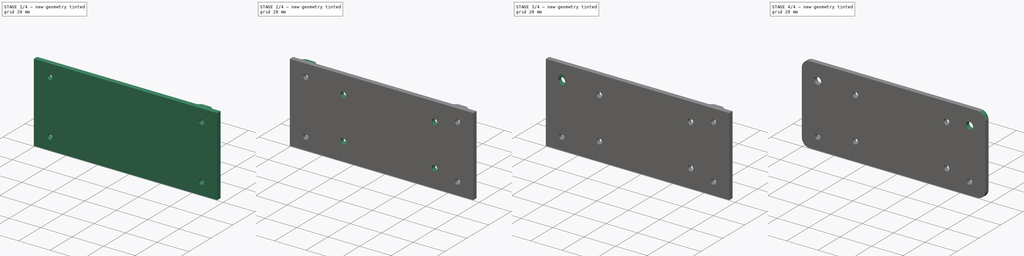
[diagram: build sequence overview — one tinted view per stage of 4, left to right]
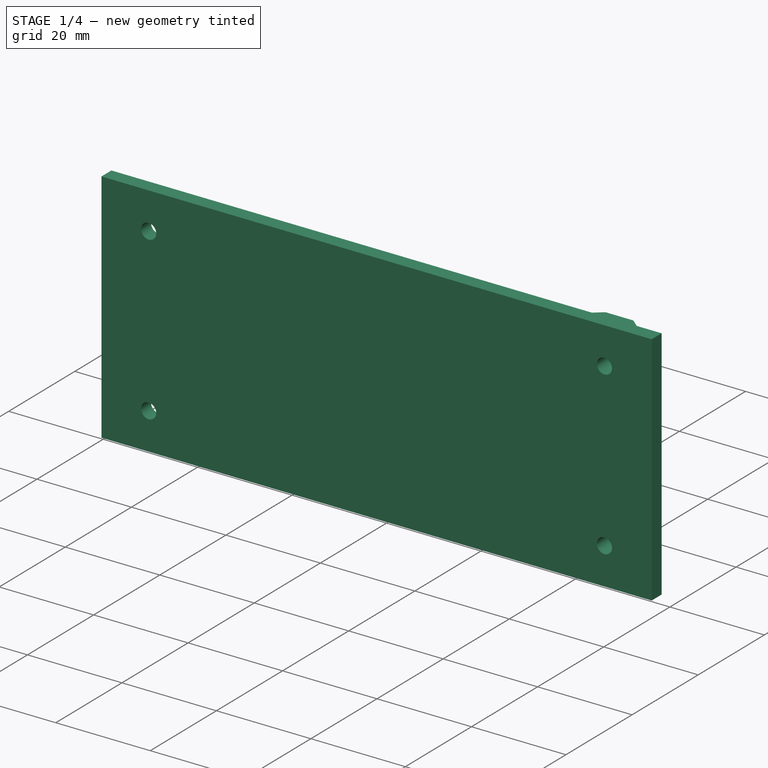
[diagram: stage 1 of 4 — iso view after this stage's code; geometry added in this stage tinted green]
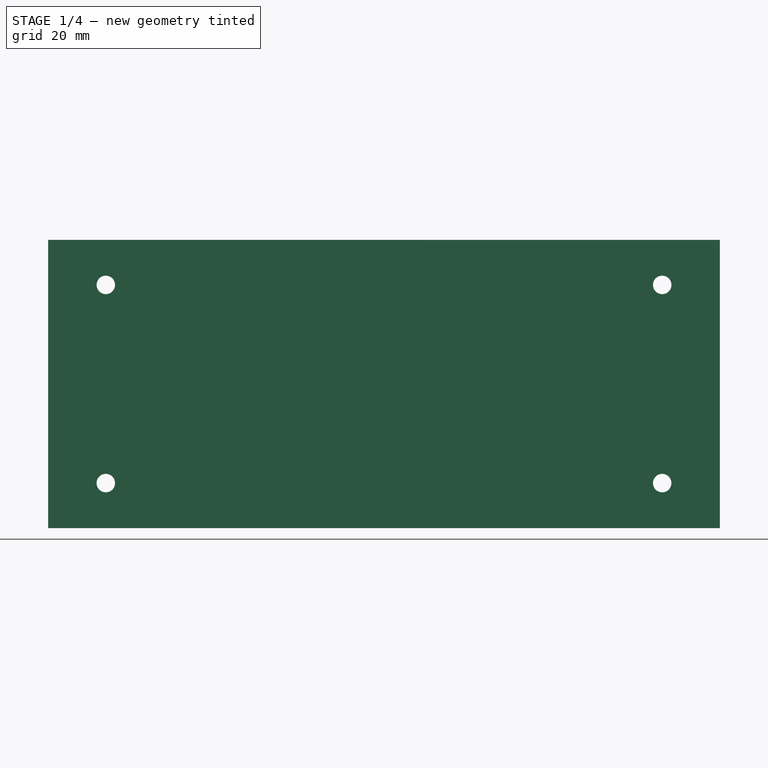
[diagram: stage 1 of 4 — front view after this stage's code; geometry added in this stage tinted green]
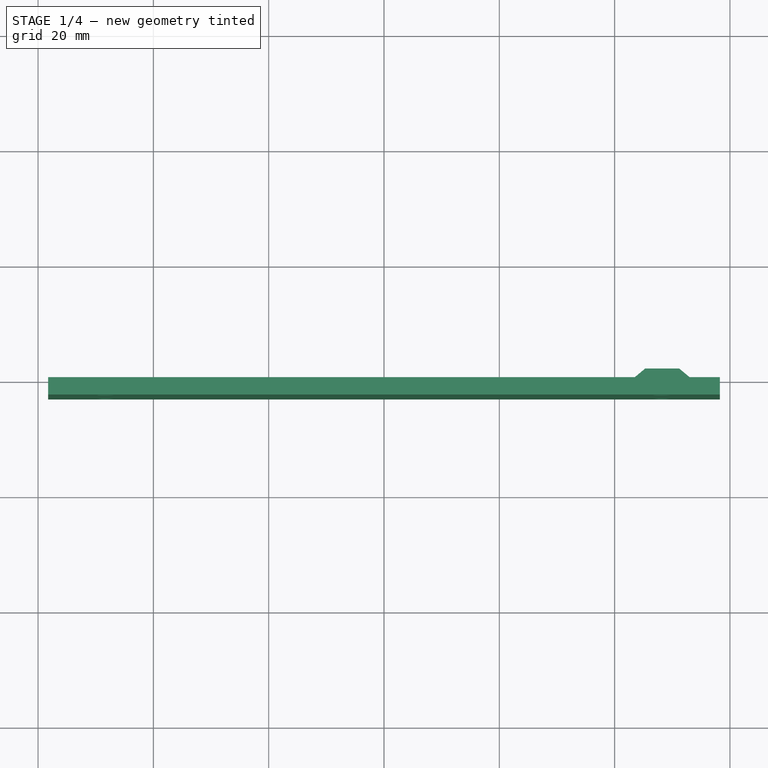
[diagram: stage 1 of 4 — top view after this stage's code; geometry added in this stage tinted green]
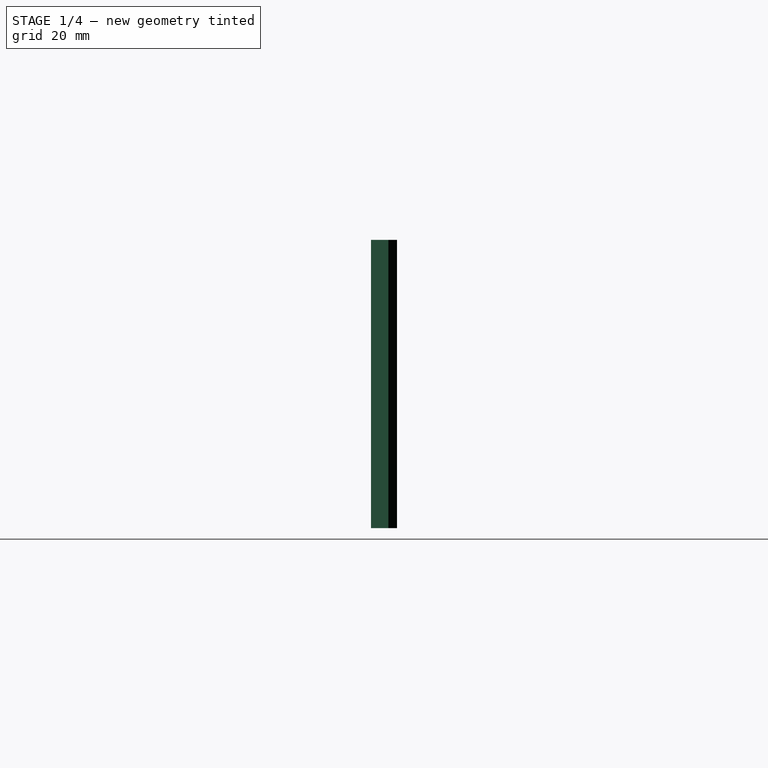
[diagram: stage 1 of 4 — right view after this stage's code; geometry added in this stage tinted green]
FCSTD DOCUMENT  (FreeCAD 1.0R39109 (Git))
Label: suporte-fonte-dcdc
License: All rights reserved
LicenseURL: https://en.wikipedia.org/wiki/All_rights_reserved
objects: Sketcher::SketchObject×6, PartDesign::Pocket×5, PartDesign::Pad×3, PartDesign::Mirrored×2, PartDesign::Body×2, Part::Refine×1, PartDesign::FeatureBase×1, PartDesign::Fillet×1
note: 48 computed .brp shape members not serialized (recipe doc carries the construction recipe); baked Part::Feature solids carry a one-line shape summary decoded from their .brp

FEATURE [Sketcher::SketchObject] Sketch
  ArcFitTolerance = 0
  AttachmentSupport = -> [XZ_Plane]
  FullyConstrained = true
  MakeInternals = false
  MapMode = 5
  Placement = pos=(0,0,0) rot=(1,0,0;1.5708rad)
  sketch-geometry (25):
    g0: LineSegment StartX=-58.25 StartY=25 StartZ=0 EndX=58.25 EndY=25 EndZ=0
    g1: LineSegment StartX=58.25 StartY=25 StartZ=0 EndX=58.25 EndY=-25 EndZ=0
    g2: LineSegment StartX=58.25 StartY=-25 StartZ=0 EndX=-58.25 EndY=-25 EndZ=0
    g3: LineSegment StartX=-58.25 StartY=-25 StartZ=0 EndX=-58.25 EndY=25 EndZ=0
    g4: LineSegment [constr] StartX=-48.25 StartY=17.186 StartZ=0 EndX=48.25 EndY=17.186 EndZ=0
    g5: LineSegment [constr] StartX=48.25 StartY=17.186 StartZ=0 EndX=48.25 EndY=-17.186 EndZ=0
    g6: LineSegment [constr] StartX=48.25 StartY=-17.186 StartZ=0 EndX=-48.25 EndY=-17.186 EndZ=0
    g7: LineSegment [constr] StartX=-48.25 StartY=-17.186 StartZ=0 EndX=-48.25 EndY=17.186 EndZ=0
    g8: Circle CenterX=-48.25 CenterY=17.186 CenterZ=0 NormalX=0 NormalY=0 NormalZ=1 AngleXU=0 Radius=1.6
    g9: Circle CenterX=-48.25 CenterY=-17.186 CenterZ=0 NormalX=0 NormalY=0 NormalZ=1 AngleXU=0 Radius=1.6
    g10: Circle CenterX=48.25 CenterY=-17.186 CenterZ=0 NormalX=0 NormalY=0 NormalZ=1 AngleXU=0 Radius=1.6
    g11: Circle CenterX=48.25 CenterY=17.186 CenterZ=0 NormalX=0 NormalY=0 NormalZ=1 AngleXU=0 Radius=1.6
    g12: LineSegment [constr] StartX=-58.25 StartY=25 StartZ=0 EndX=-38.25 EndY=25 EndZ=0
    g13: LineSegment [constr] StartX=-38.25 StartY=25 StartZ=0 EndX=-38.25 EndY=-25 EndZ=0
    g14: LineSegment [constr] StartX=-38.25 StartY=-25 StartZ=0 EndX=-58.25 EndY=-25 EndZ=0
    g15: LineSegment [constr] StartX=-58.25 StartY=-25 StartZ=0 EndX=-58.25 EndY=25 EndZ=0
    g16: LineSegment [constr] StartX=58.25 StartY=-25 StartZ=0 EndX=38.25 EndY=-25 EndZ=0
    g17: LineSegment [constr] StartX=38.25 StartY=-25 StartZ=0 EndX=38.25 EndY=25 EndZ=0
    g18: LineSegment [constr] StartX=38.25 StartY=25 StartZ=0 EndX=58.25 EndY=25 EndZ=0
    g19: LineSegment [constr] StartX=58.25 StartY=25 StartZ=0 EndX=58.25 EndY=-25 EndZ=0
    g20: LineSegment [constr] StartX=-58.25 StartY=0 StartZ=0 EndX=-38.25 EndY=0 EndZ=0
    g21: LineSegment [constr] StartX=-27.99 StartY=18.25 StartZ=0 EndX=37.25 EndY=18.25 EndZ=0
    g22: LineSegment [constr] StartX=37.25 StartY=18.25 StartZ=0 EndX=37.25 EndY=-18.25 EndZ=0
    g23: LineSegment [constr] StartX=37.25 StartY=-18.25 StartZ=0 EndX=-27.99 EndY=-18.25 EndZ=0
    g24: LineSegment [constr] StartX=-27.99 StartY=-18.25 StartZ=0 EndX=-27.99 EndY=18.25 EndZ=0
  constraints (64):
    c: Coincident(g0,g1)
    c: Coincident(g1,g2)
    c: Coincident(g2,g3)
    c: Coincident(g3,g0)
    c: Horizontal(g2)
    c: Vertical(g1)
    c: Symmetric(g0,g2,g-1)
    c: Symmetric(g0,g0,g-2)
    c: DistanceX(g2,g2) = 116.5
    c: DistanceY(g3,g3) = 50
    c: Coincident(g4,g5)
    c: Coincident(g5,g6)
    c: Coincident(g6,g7)
    c: Coincident(g7,g4)
    c: Horizontal(g6)
    c: Vertical(g5)
    c: Symmetric(g4,g6,g-1)
    c: Symmetric(g4,g4,g-2)
    c: Coincident(g8,g4)
    c: Coincident(g9,g6)
    c: Coincident(g10,g5)
    c: Coincident(g11,g4)
    c: Equal(g11,g8)
    c: Equal(g8,g9)
    c: Equal(g9,g10)
    c: Coincident(g12,g13)
    c: Coincident(g13,g14)
    c: Coincident(g14,g15)
    c: Coincident(g15,g12)
    c: Horizontal(g14)
    c: Vertical(g13)
    c: Vertical(g15)
    c: Coincident(g12,g0)
    c: PointOnObject(g13,g2)
    c: DistanceX(g0,g12) = 20
    c: DistanceY(g7,g7) = 34.372
    c: Symmetric(g0,g12,g7)
    c: Diameter(g10) = 3.2
    c: Coincident(g16,g17)
    c: Coincident(g17,g18)
    c: Coincident(g18,g19)
    c: Coincident(g19,g16)
    c: Horizontal(g16)
    c: Horizontal(g18)
    c: Vertical(g17)
    c: Vertical(g19)
    c: Coincident(g16,g1)
    c: PointOnObject(g20,g3)
    c: PointOnObject(g20,g13)
    c: PointOnObject(g20,g-1)
    c: PointOnObject(g20,g-1)
    c: Equal(g20,g18)
    c: PointOnObject(g17,g0)
    c: Coincident(g21,g22)
    c: Coincident(g22,g23)
    c: Coincident(g23,g24)
    c: Coincident(g24,g21)
    c: Horizontal(g21)
    c: Horizontal(g23)
    c: Vertical(g22)
    c: DistanceX(g21,g21) = 65.24
    c: DistanceX(g22,g16) = 1
    c: Symmetric(g21,g23,g-1)
    c: DistanceY(g22,g22) = 36.5
FEATURE [PartDesign::Pad] Pad
  Direction = (0,-1,-2e-16)
  Length = 3
  Length2 = 10
  Placement = pos=(0,0,0) rot=(1,0,0;1.5708rad)
  Profile = -> Sketch
  ReferenceAxis = -> Sketch [N_Axis]
  Suppressed = false
  Type = 0
FEATURE [Sketcher::SketchObject] Sketch001
  ArcFitTolerance = 0
  AttachmentSupport = -> [Pad]
  ExternalGeometry = -> [Pad]
  FullyConstrained = false
  MakeInternals = false
  MapMode = 5
  Placement = pos=(0,0,25) rot=(0,0,1;3.14159rad)
  sketch-geometry (6):
    g0: LineSegment [constr] StartX=-58.25 StartY=0 StartZ=0 EndX=-38.25 EndY=0 EndZ=0
    g1: LineSegment [constr] StartX=-48.25 StartY=0 StartZ=0 EndX=-48.25 EndY=-19.4586 EndZ=0
    g2: LineSegment StartX=-51.2 StartY=-1.5 StartZ=0 EndX=-45.3 EndY=-1.5 EndZ=0
    g3: LineSegment StartX=-45.3 StartY=-1.5 StartZ=0 EndX=-43.5 EndY=0 EndZ=0
    g4: LineSegment StartX=-43.5 StartY=0 StartZ=0 EndX=-53 EndY=0 EndZ=0
    g5: LineSegment StartX=-53 StartY=0 StartZ=0 EndX=-51.2 EndY=-1.5 EndZ=0
  constraints (15):
    c: Coincident(g0,g-3)
    c: PointOnObject(g0,g-1)
    c: DistanceX(g0,g0) = 20
    c: PointOnObject(g1,g0)
    c: Coincident(g2,g3)
    c: Coincident(g3,g4)
    c: Coincident(g4,g5)
    c: Coincident(g5,g2)
    c: Symmetric(g2,g2,g1)
    c: Symmetric(g4,g3,g1)
    c: Symmetric(g0,g0,g1)
    c: PointOnObject(g4,g0)
    c: DistanceX(g4,g4) = 9.5
    c: DistanceX(g2,g2) = 5.9
    c: DistanceY(g2,g4) = 1.5
FEATURE [PartDesign::Pad] Pad001
  BaseFeature = -> Pad
  Direction = (0,-2e-16,1)
  Length = 10
  Length2 = 10
  Placement = pos=(0,0,0) rot=(1,0,0;1.5708rad)
  Profile = -> Sketch001
  ReferenceAxis = -> Sketch001 [N_Axis]
  Suppressed = false
  Type = 3
  UpToFace = -> Pad [Face3]
FEATURE [PartDesign::Pocket] Pocket
  BaseFeature = -> Pad001
  Direction = (0,1,2e-16)
  Length = 5
  Length2 = 5
  Placement = pos=(0,0,0) rot=(1,0,0;1.5708rad)
  Profile = -> Pad001 [Face18,Face17]
  Suppressed = false
  Type = 1
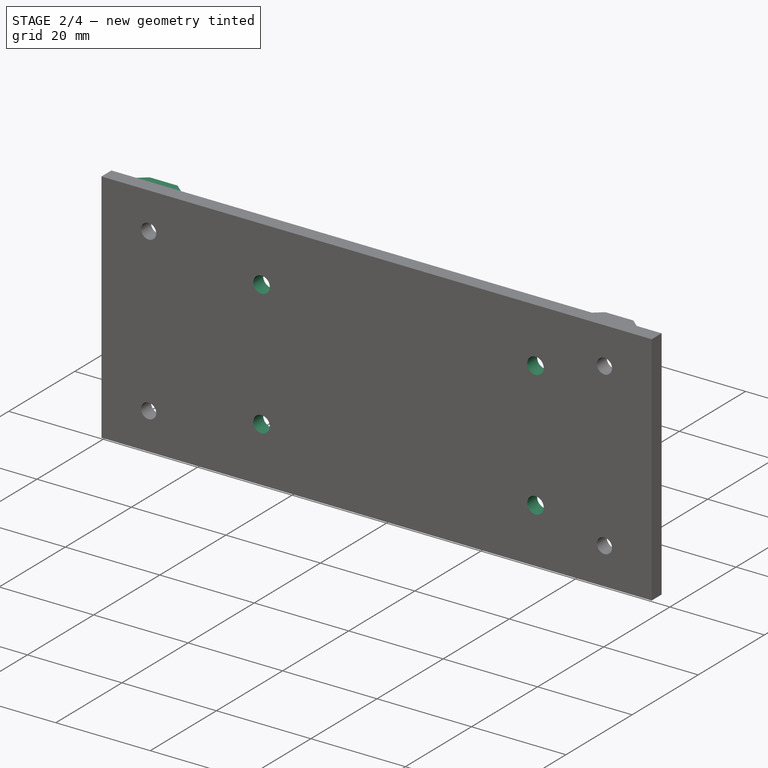
[diagram: stage 2 of 4 — iso view after this stage's code; geometry added in this stage tinted green]
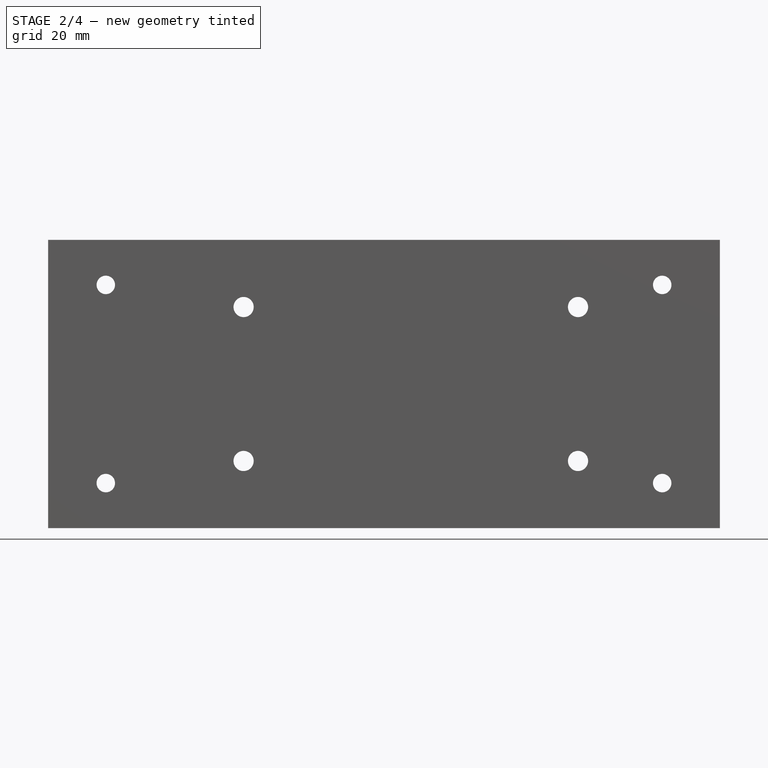
[diagram: stage 2 of 4 — front view after this stage's code; geometry added in this stage tinted green]
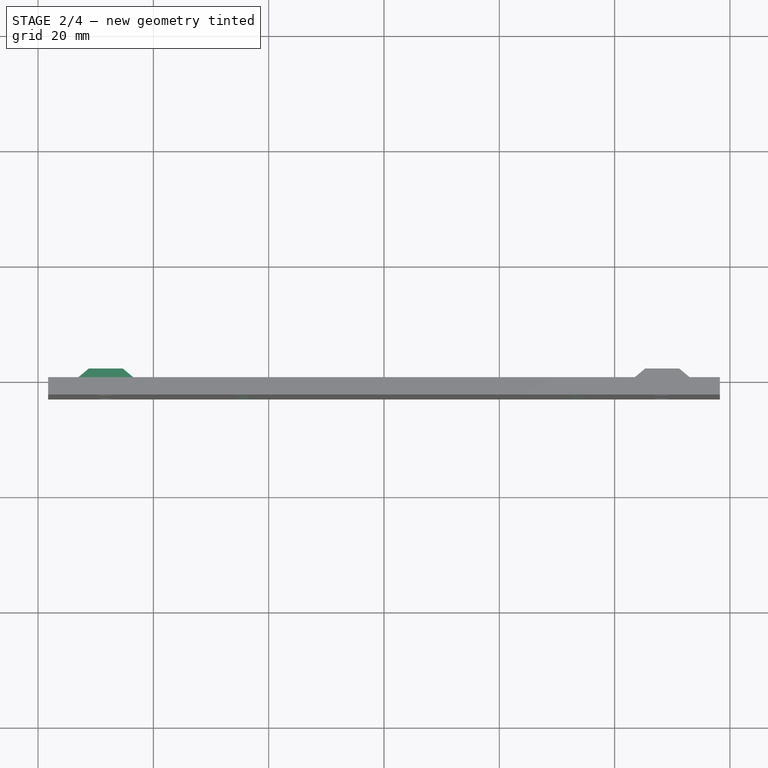
[diagram: stage 2 of 4 — top view after this stage's code; geometry added in this stage tinted green]
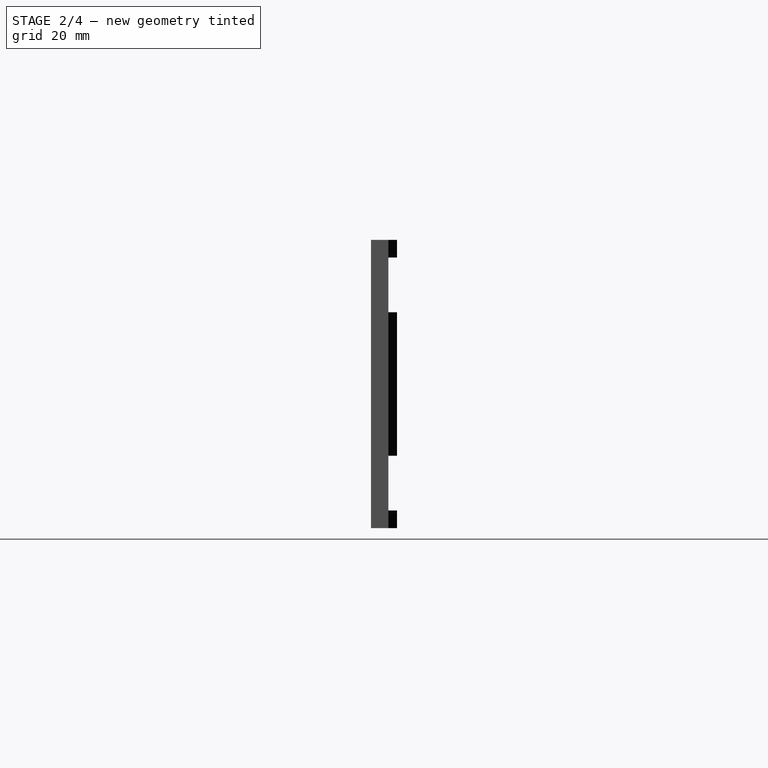
[diagram: stage 2 of 4 — right view after this stage's code; geometry added in this stage tinted green]
FEATURE [Sketcher::SketchObject] Sketch002
  ArcFitTolerance = 0
  AttachmentSupport = -> [Pocket]
  ExternalGeometry = -> [Pocket]
  FullyConstrained = true
  MakeInternals = false
  MapMode = 5
  Placement = pos=(0,1.5,0) rot=(-1,0,0;1.5708rad)
  sketch-geometry (10):
    g0: Circle [constr] CenterX=48.25 CenterY=17.186 CenterZ=0 NormalX=0 NormalY=0 NormalZ=1 AngleXU=0 Radius=4.75
    g1: Circle [constr] CenterX=48.25 CenterY=-17.186 CenterZ=0 NormalX=0 NormalY=0 NormalZ=1 AngleXU=0 Radius=4.75
    g2: LineSegment StartX=43.5 StartY=21.936 StartZ=0 EndX=53 EndY=21.936 EndZ=0
    g3: LineSegment StartX=53 StartY=21.936 StartZ=0 EndX=53 EndY=12.436 EndZ=0
    g4: LineSegment StartX=53 StartY=12.436 StartZ=0 EndX=43.5 EndY=12.436 EndZ=0
    g5: LineSegment StartX=43.5 StartY=12.436 StartZ=0 EndX=43.5 EndY=21.936 EndZ=0
    g6: LineSegment StartX=43.5 StartY=-12.436 StartZ=0 EndX=53 EndY=-12.436 EndZ=0
    g7: LineSegment StartX=53 StartY=-12.436 StartZ=0 EndX=53 EndY=-21.936 EndZ=0
    g8: LineSegment StartX=53 StartY=-21.936 StartZ=0 EndX=43.5 EndY=-21.936 EndZ=0
    g9: LineSegment StartX=43.5 StartY=-21.936 StartZ=0 EndX=43.5 EndY=-12.436 EndZ=0
  constraints (28):
    c: Coincident(g0,g-3)
    c: Coincident(g1,g-4)
    c: Tangent(g1,g-5)
    c: Tangent(g0,g-6)
    c: Coincident(g2,g3)
    c: Coincident(g3,g4)
    c: Coincident(g4,g5)
    c: Coincident(g5,g2)
    c: Horizontal(g2)
    c: Horizontal(g4)
    c: Vertical(g3)
    c: Vertical(g5)
    c: Coincident(g6,g7)
    c: Coincident(g7,g8)
    c: Coincident(g8,g9)
    c: Coincident(g9,g6)
    c: Horizontal(g6)
    c: Horizontal(g8)
    c: Vertical(g7)
    c: Vertical(g9)
    c: Tangent(g1,g8)
    c: Tangent(g1,g9)
    c: Tangent(g1,g6)
    c: Tangent(g1,g7)
    c: Tangent(g4,g0)
    c: Tangent(g0,g2)
    c: Tangent(g0,g5)
    c: Tangent(g0,g3)
FEATURE [PartDesign::Pocket] Pocket001
  BaseFeature = -> Pocket
  Direction = (0,-1,-2e-16)
  Length = 0
  Length2 = 5
  Placement = pos=(0,0,0) rot=(1,0,0;1.5708rad)
  Profile = -> Sketch002
  ReferenceAxis = -> Sketch002 [N_Axis]
  Suppressed = false
  Type = 3
  UpToFace = -> Pocket [Face4]
FEATURE [PartDesign::Mirrored] Mirrored
  BaseFeature = -> Pocket001
  MirrorPlane = -> YZ_Plane
  Originals = -> [Pad001,Pocket,Pocket001]
  Placement = pos=(0,0,0) rot=(1,0,0;1.5708rad)
  Suppressed = false
  TransformMode = 0
FEATURE [Sketcher::SketchObject] Sketch003
  ArcFitTolerance = 0
  AttachmentSupport = -> [Mirrored]
  ExternalGeometry = -> [Mirrored]
  FullyConstrained = true
  MakeInternals = false
  MapMode = 5
  Placement = pos=(0,0,0) rot=(-1,0,0;1.5708rad)
  sketch-geometry (28):
    g0: LineSegment [constr] StartX=-27.95 StartY=18.25 StartZ=0 EndX=37.25 EndY=18.25 EndZ=0
    g1: LineSegment [constr] StartX=37.25 StartY=18.25 StartZ=0 EndX=37.25 EndY=-18.25 EndZ=0
    g2: LineSegment [constr] StartX=37.25 StartY=-18.25 StartZ=0 EndX=-27.95 EndY=-18.25 EndZ=0
    g3: LineSegment [constr] StartX=-27.95 StartY=-18.25 StartZ=0 EndX=-27.95 EndY=18.25 EndZ=0
    g4: LineSegment [constr] StartX=-58.25 StartY=25 StartZ=0 EndX=-38.25 EndY=25 EndZ=0
    g5: LineSegment [constr] StartX=-38.25 StartY=25 StartZ=0 EndX=-38.25 EndY=-25 EndZ=0
    g6: LineSegment [constr] StartX=-38.25 StartY=-25 StartZ=0 EndX=-58.25 EndY=-25 EndZ=0
    g7: LineSegment [constr] StartX=-58.25 StartY=-25 StartZ=0 EndX=-58.25 EndY=25 EndZ=0
    g8: LineSegment [constr] StartX=58.25 StartY=25 StartZ=0 EndX=38.25 EndY=25 EndZ=0
    g9: LineSegment [constr] StartX=38.25 StartY=25 StartZ=0 EndX=38.25 EndY=-25 EndZ=0
    g10: LineSegment [constr] StartX=38.25 StartY=-25 StartZ=0 EndX=58.25 EndY=-25 EndZ=0
    g11: LineSegment [constr] StartX=58.25 StartY=-25 StartZ=0 EndX=58.25 EndY=25 EndZ=0
    g12: LineSegment [constr] StartX=-24.35 StartY=13.35 StartZ=0 EndX=33.65 EndY=13.35 EndZ=0
    g13: LineSegment [constr] StartX=33.65 StartY=13.35 StartZ=0 EndX=33.65 EndY=-13.35 EndZ=0
    g14: LineSegment [constr] StartX=33.65 StartY=-13.35 StartZ=0 EndX=-24.35 EndY=-13.35 EndZ=0
    g15: LineSegment [constr] StartX=-24.35 StartY=-13.35 StartZ=0 EndX=-24.35 EndY=13.35 EndZ=0
    g16: LineSegment [constr] StartX=-27.95 StartY=-4e-16 StartZ=0 EndX=37.25 EndY=-4e-16 EndZ=0
    g17: LineSegment [constr] StartX=4.65 StartY=18.25 StartZ=0 EndX=4.65 EndY=-18.25 EndZ=0
    g18: Circle [constr] CenterX=-24.35 CenterY=13.35 CenterZ=0 NormalX=0 NormalY=0 NormalZ=1 AngleXU=0 Radius=1.5
    g19: Circle [constr] CenterX=33.65 CenterY=13.35 CenterZ=0 NormalX=0 NormalY=0 NormalZ=1 AngleXU=0 Radius=1.5
    g20: Circle [constr] CenterX=33.65 CenterY=-13.35 CenterZ=0 NormalX=0 NormalY=0 NormalZ=1 AngleXU=0 Radius=1.5
    g21: Circle [constr] CenterX=-24.35 CenterY=-13.35 CenterZ=0 NormalX=0 NormalY=0 NormalZ=1 AngleXU=0 Radius=1.5
    g22: LineSegment [constr] StartX=-25.85 StartY=13.35 StartZ=0 EndX=-27.95 EndY=13.35 EndZ=0
    g23: LineSegment [constr] StartX=-24.35 StartY=14.85 StartZ=0 EndX=-24.35 EndY=18.25 EndZ=0
    g24: Circle CenterX=-24.35 CenterY=-13.35 CenterZ=0 NormalX=0 NormalY=0 NormalZ=1 AngleXU=0 Radius=1.75
    g25: Circle CenterX=33.65 CenterY=-13.35 CenterZ=0 NormalX=0 NormalY=0 NormalZ=1 AngleXU=0 Radius=1.75
    g26: Circle CenterX=33.65 CenterY=13.35 CenterZ=0 NormalX=0 NormalY=0 NormalZ=1 AngleXU=0 Radius=1.75
    g27: Circle CenterX=-24.35 CenterY=13.35 CenterZ=0 NormalX=0 NormalY=0 NormalZ=1 AngleXU=0 Radius=1.75
  constraints (73):
    c: Coincident(g0,g1)
    c: Coincident(g1,g2)
    c: Coincident(g2,g3)
    c: Coincident(g3,g0)
    c: Horizontal(g0)
    c: Vertical(g3)
    c: Coincident(g4,g5)
    c: Coincident(g5,g6)
    c: Coincident(g6,g7)
    c: Coincident(g7,g4)
    c: Horizontal(g4)
    c: Horizontal(g6)
    c: Vertical(g5)
    c: Vertical(g7)
    c: Coincident(g4,g-4)
    c: Coincident(g8,g9)
    c: Coincident(g9,g10)
    c: Coincident(g10,g11)
    c: Coincident(g11,g8)
    c: Horizontal(g8)
    c: Horizontal(g10)
    c: Vertical(g9)
    c: Vertical(g11)
    c: Coincident(g8,g-5)
    c: Horizontal(g9,g5)
    c: PointOnObject(g-3,g10)
    c: Equal(g4,g8)
    c: DistanceX(g10,g10) = 20
    c: Coincident(g12,g13)
    c: Coincident(g13,g14)
    c: Coincident(g14,g15)
    c: Coincident(g15,g12)
    c: Horizontal(g14)
    c: Vertical(g13)
    c: Vertical(g1)
    c: Symmetric(g0,g2,g16)
    c: Symmetric(g1,g2,g17)
    c: PointOnObject(g16,g1)
    c: PointOnObject(g16,g3)
    c: PointOnObject(g17,g0)
    c: PointOnObject(g17,g2)
    c: Symmetric(g14,g12,g16)
    c: Symmetric(g12,g12,g17)
    c: Coincident(g18,g12)
    c: Coincident(g19,g12)
    c: Coincident(g20,g13)
    c: Coincident(g21,g14)
    c: Equal(g21,g20)
    c: Equal(g20,g19)
    c: Equal(g19,g18)
    c: Diameter(g20) = 3
    c: PointOnObject(g22,g3)
    c: Horizontal(g22)
    c: Horizontal(g22,g18)
    c: PointOnObject(g22,g18)
    c: DistanceX(g22,g22) = 2.1
    c: PointOnObject(g23,g18)
    c: PointOnObject(g23,g0)
    c: Vertical(g12,g23)
    c: Vertical(g23,g23)
    c: DistanceY(g23,g23) = 3.4
    c: DistanceX(g2,g2) = 65.2
    c: DistanceY(g1,g1) = 36.5
    c: Coincident(g24,g14)
    c: Coincident(g25,g13)
    c: Coincident(g26,g12)
    c: Coincident(g27,g12)
    c: Equal(g27,g26)
    c: Equal(g26,g25)
    c: Equal(g25,g24)
    c: Diameter(g25) = 3.5
    c: DistanceX(g1,g9) = 1
    c: Symmetric(g17,g17,g-1)
FEATURE [PartDesign::Pocket] Pocket002
  BaseFeature = -> Mirrored
  Direction = (0,-1,-2e-16)
  Length = 5
  Length2 = 5
  Placement = pos=(0,0,0) rot=(1,0,0;1.5708rad)
  Profile = -> Sketch003
  ReferenceAxis = -> Sketch003 [N_Axis]
  Suppressed = false
  Type = 0
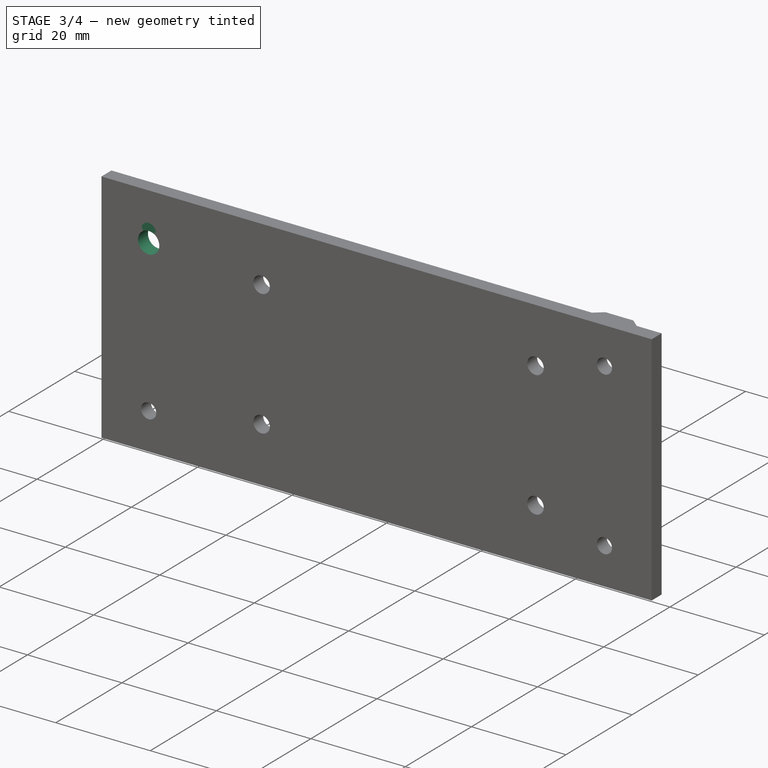
[diagram: stage 3 of 4 — iso view after this stage's code; geometry added in this stage tinted green]
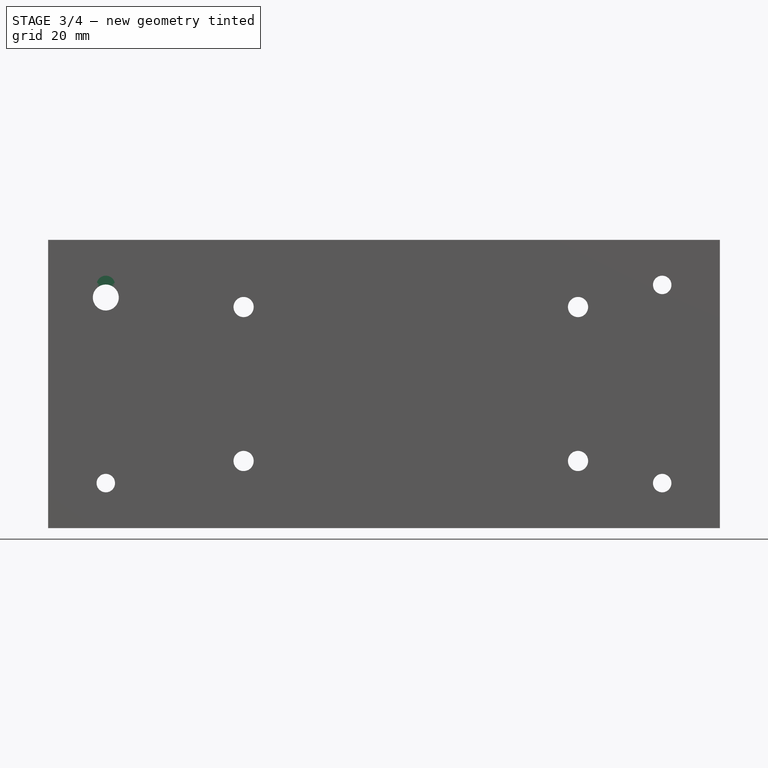
[diagram: stage 3 of 4 — front view after this stage's code; geometry added in this stage tinted green]
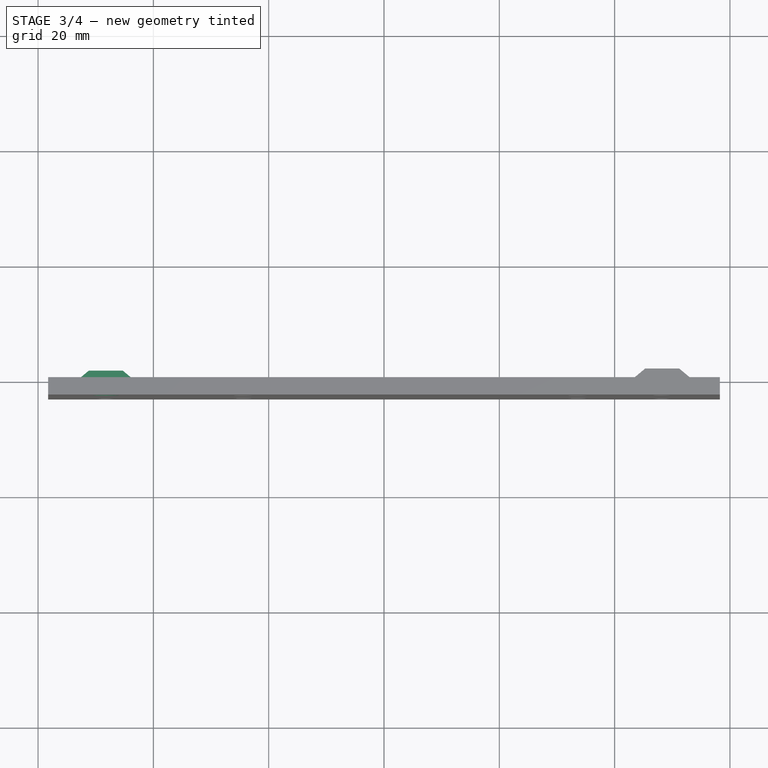
[diagram: stage 3 of 4 — top view after this stage's code; geometry added in this stage tinted green]
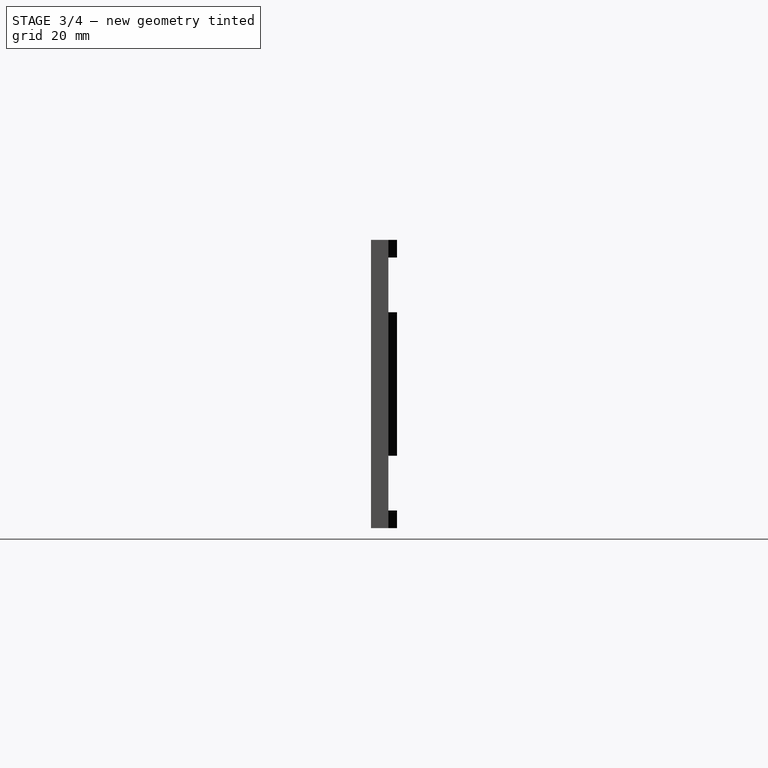
[diagram: stage 3 of 4 — right view after this stage's code; geometry added in this stage tinted green]
FEATURE [PartDesign::Pocket] Pocket003  label="correcao"
  BaseFeature = -> Pocket002
  Direction = (2e-16,0,-1)
  Length = 21
  Length2 = 5
  Placement = pos=(0,0,0) rot=(1,0,0;1.5708rad)
  Profile = -> Pocket002 [Face5]
  Suppressed = false
  Type = 0
FEATURE [Sketcher::SketchObject] Sketch004
  ArcFitTolerance = 0
  AttachmentSupport = -> [Pocket003]
  ExternalGeometry = -> [Pocket003]
  FullyConstrained = true
  MakeInternals = false
  MapMode = 5
  Placement = pos=(0,0,0) rot=(-1,0,0;1.5708rad)
  sketch-geometry (1):
    g0: Circle CenterX=-48.25 CenterY=-17.186 CenterZ=0 NormalX=0 NormalY=0 NormalZ=1 AngleXU=0 Radius=1.6
  constraints (2):
    c: Coincident(g0,g-4)
    c: Equal(g0,g-3)
FEATURE [PartDesign::Pad] Pad002
  BaseFeature = -> Pocket003
  Direction = (2e-16,1,2e-16)
  Length = 10
  Length2 = 10
  Placement = pos=(0,0,0) rot=(1,0,0;1.5708rad)
  Profile = -> Sketch004
  ReferenceAxis = -> Sketch004 [N_Axis]
  Suppressed = false
  Type = 3
  UpToFace = -> Pocket003 [Face9]
FEATURE [Sketcher::SketchObject] Sketch005
  ArcFitTolerance = 0
  AttachmentSupport = -> [Pad002]
  ExternalGeometry = -> [Pad002]
  FullyConstrained = true
  MakeInternals = false
  MapMode = 5
  Placement = pos=(0,0,0) rot=(-1,0,0;1.5708rad)
  sketch-geometry (7):
    g0: LineSegment [constr] StartX=-58.25 StartY=-25 StartZ=0 EndX=-38.25 EndY=-25 EndZ=0
    g1: LineSegment [constr] StartX=-38.25 StartY=-25 StartZ=0 EndX=-38.25 EndY=-5 EndZ=0
    g2: LineSegment [constr] StartX=-38.25 StartY=-5 StartZ=0 EndX=-58.25 EndY=-5 EndZ=0
    g3: LineSegment [constr] StartX=-58.25 StartY=-5 StartZ=0 EndX=-58.25 EndY=-25 EndZ=0
    g4: LineSegment [constr] StartX=-58.25 StartY=-15 StartZ=0 EndX=-38.25 EndY=-15 EndZ=0
    g5: LineSegment [constr] StartX=-48.25 StartY=-5 StartZ=0 EndX=-48.25 EndY=-25 EndZ=0
    g6: Circle CenterX=-48.25 CenterY=-15 CenterZ=0 NormalX=0 NormalY=0 NormalZ=1 AngleXU=0 Radius=2.25
  constraints (20):
    c: Coincident(g0,g1)
    c: Coincident(g1,g2)
    c: Coincident(g2,g3)
    c: Coincident(g3,g0)
    c: Horizontal(g0)
    c: Horizontal(g2)
    c: Vertical(g1)
    c: Vertical(g3)
    c: Coincident(g0,g-3)
    c: Symmetric(g2,g0,g4)
    c: Symmetric(g0,g0,g5)
    c: PointOnObject(g4,g3)
    c: PointOnObject(g4,g1)
    c: PointOnObject(g5,g0)
    c: PointOnObject(g5,g2)
    c: DistanceX(g0,g0) = 20
    c: Equal(g1,g0)
    c: PointOnObject(g6,g5)
    c: PointOnObject(g6,g4)
    c: Diameter(g6) = 4.5
FEATURE [PartDesign::Pocket] Pocket004
  BaseFeature = -> Pad002
  Direction = (0,-1,-2e-16)
  Length = 5
  Length2 = 5
  Placement = pos=(0,0,0) rot=(1,0,0;1.5708rad)
  Profile = -> Sketch005
  ReferenceAxis = -> Sketch005 [N_Axis]
  Suppressed = false
  Type = 1
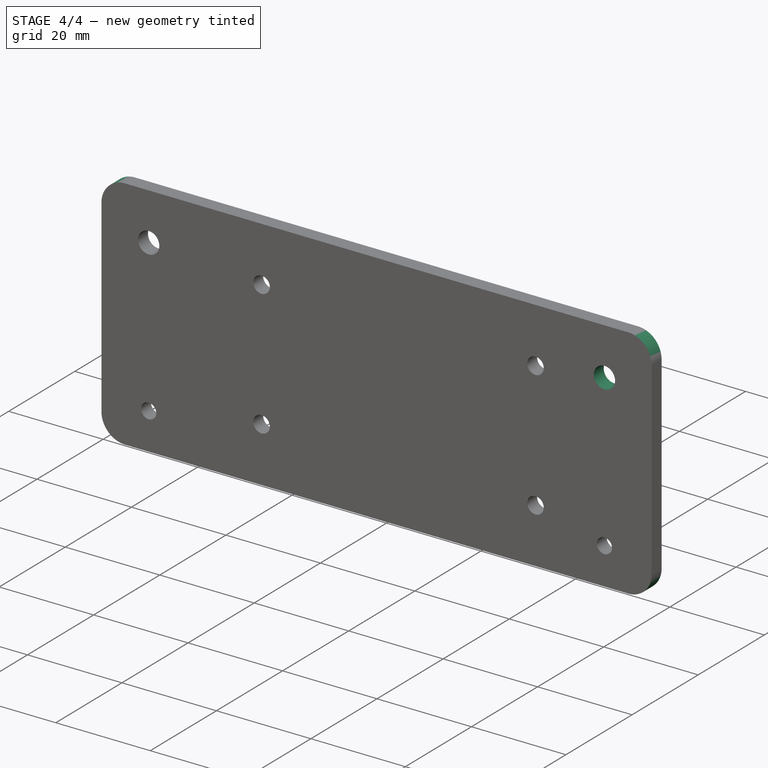
[diagram: stage 4 of 4 — iso view after this stage's code; geometry added in this stage tinted green]
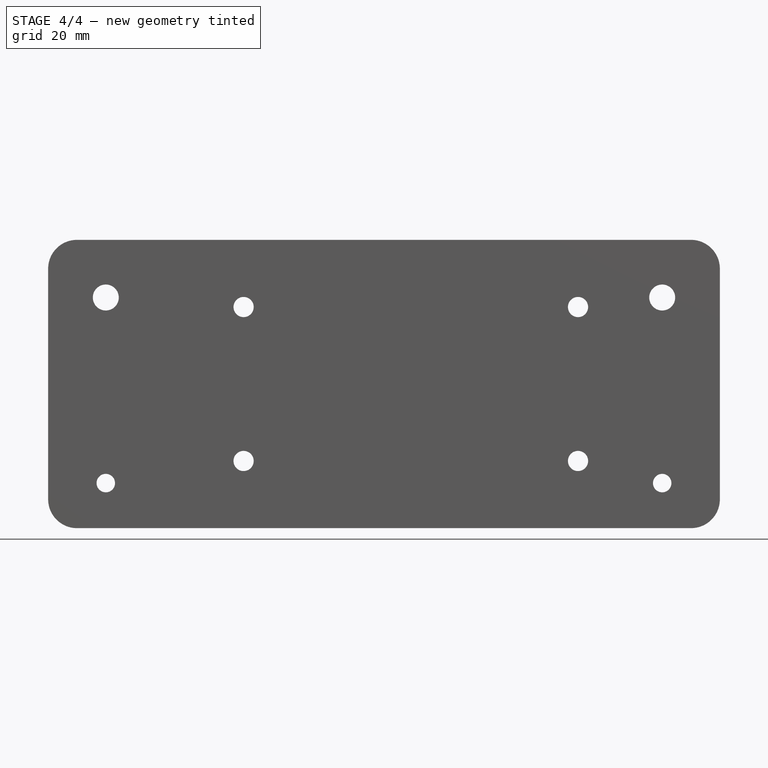
[diagram: stage 4 of 4 — front view after this stage's code; geometry added in this stage tinted green]
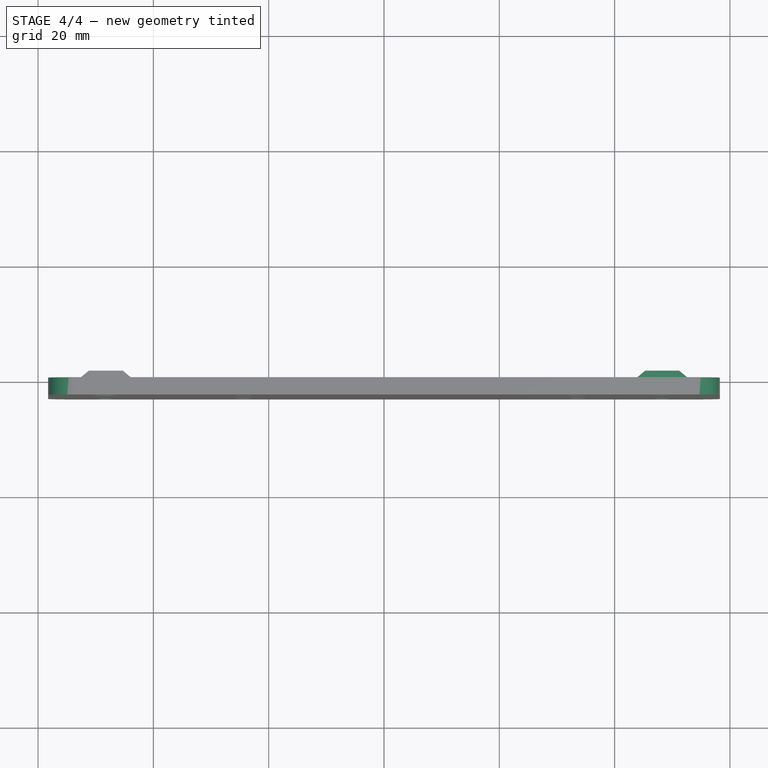
[diagram: stage 4 of 4 — top view after this stage's code; geometry added in this stage tinted green]
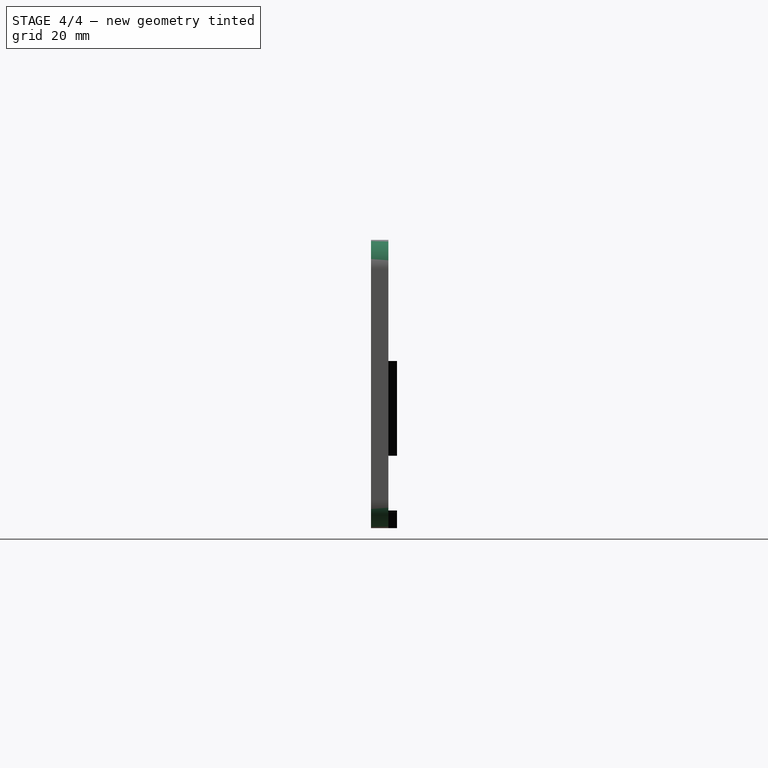
[diagram: stage 4 of 4 — right view after this stage's code; geometry added in this stage tinted green]
FEATURE [PartDesign::Mirrored] Mirrored001
  BaseFeature = -> Pocket004
  MirrorPlane = -> YZ_Plane
  Originals = -> [Pocket003,Pad002,Pocket004]
  Placement = pos=(0,0,0) rot=(1,0,0;1.5708rad)
  Suppressed = false
  TransformMode = 0
FEATURE [PartDesign::Body] Body
  AllowCompound = false
  Group = -> [Sketch,Pad,Sketch001,Pad001,Pocket,Sketch002,Pocket001,Mirrored,Sketch003,Pocket002,Pocket003,Sketch004,Pad002,Sketch005,Pocket004,Mirrored001]
  Origin = -> Origin
  Tip = -> Mirrored001
FEATURE [Part::Refine] Body001
  Source = -> Body
FEATURE [PartDesign::FeatureBase] BaseFeature
  BaseFeature = -> Body001
  Suppressed = false
FEATURE [PartDesign::Fillet] Fillet
  Base = -> BaseFeature [Edge50,Edge51,Edge53,Edge55]
  BaseFeature = -> BaseFeature
  Radius = 5
  SupportTransform = false
  Suppressed = false
  UseAllEdges = false
FEATURE [PartDesign::Body] Body002  label="suporte-fonte-dcdc"
  AllowCompound = false
  BaseFeature = -> Body001
  Group = -> [BaseFeature,Fillet]
  Origin = -> Origin001
  Tip = -> Fillet
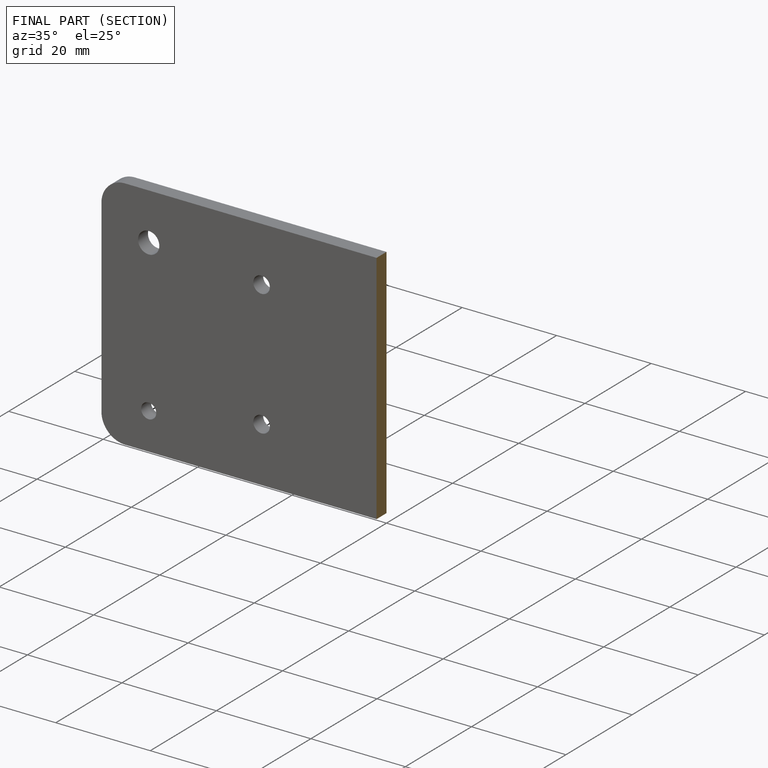
[diagram: finished part — half-section view (interior)]
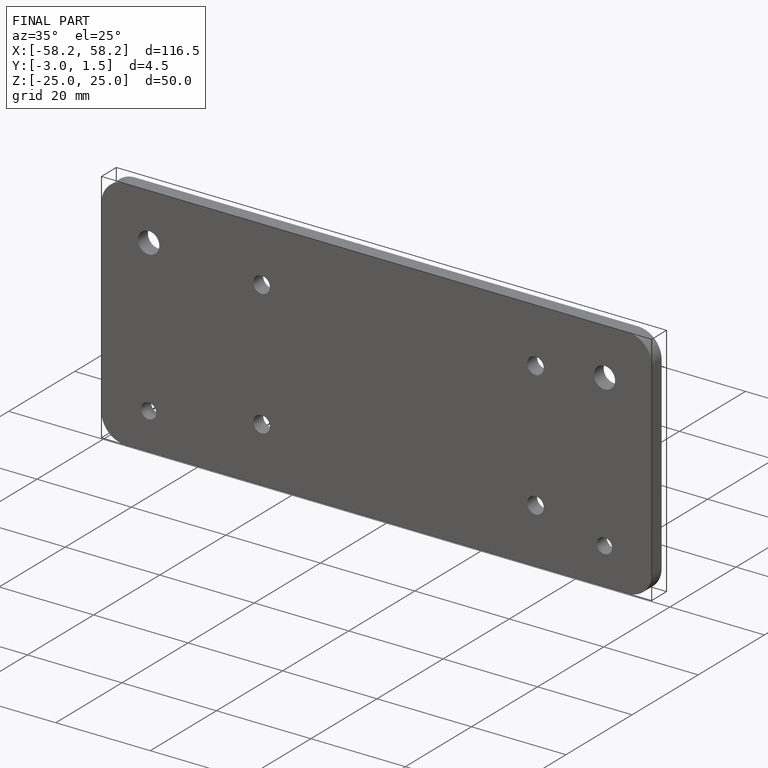
[diagram: finished part — iso view with bounding-box wireframe]
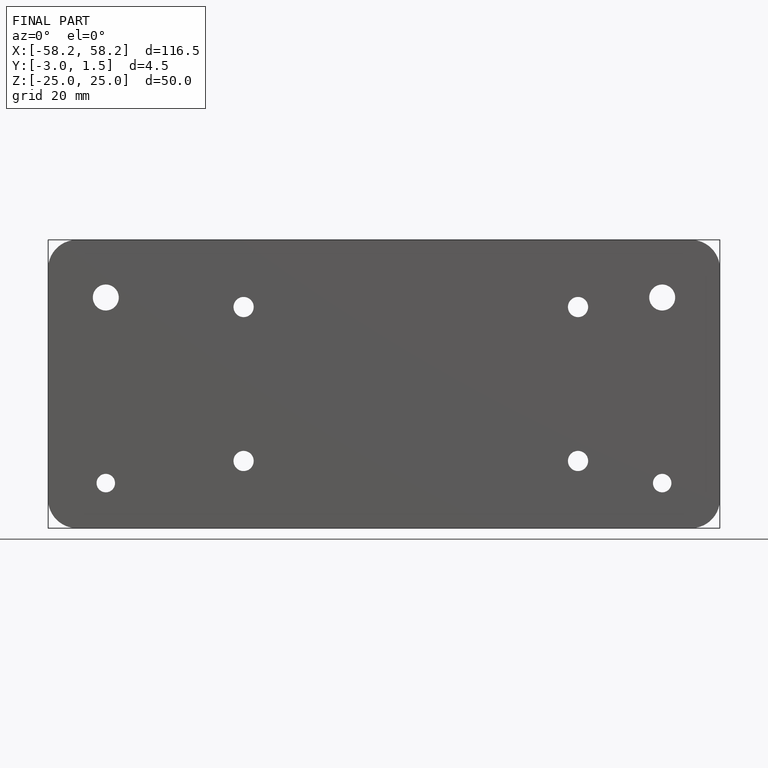
[diagram: finished part — front view with bounding-box wireframe]
